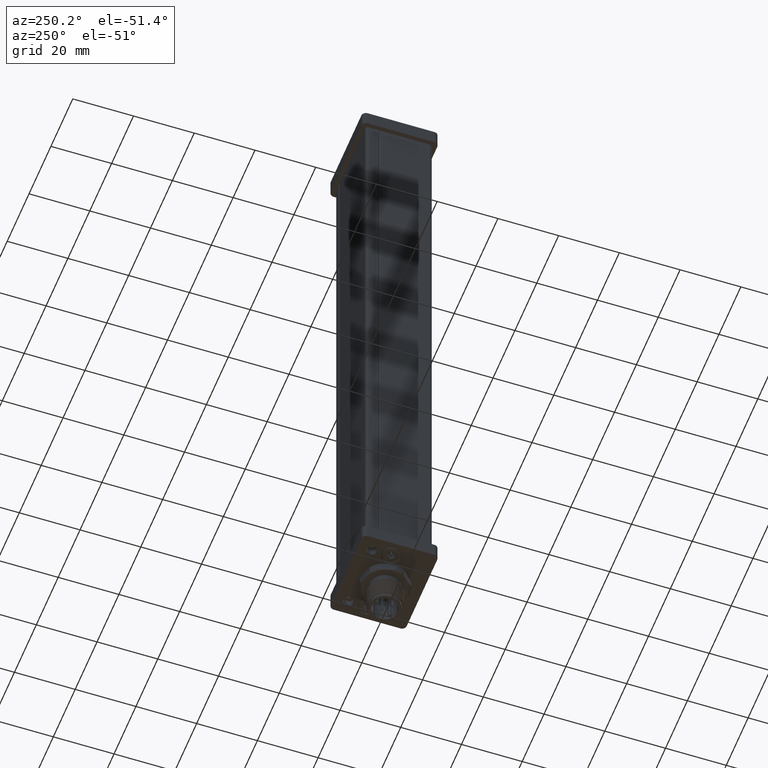
[diagram: clean part render]
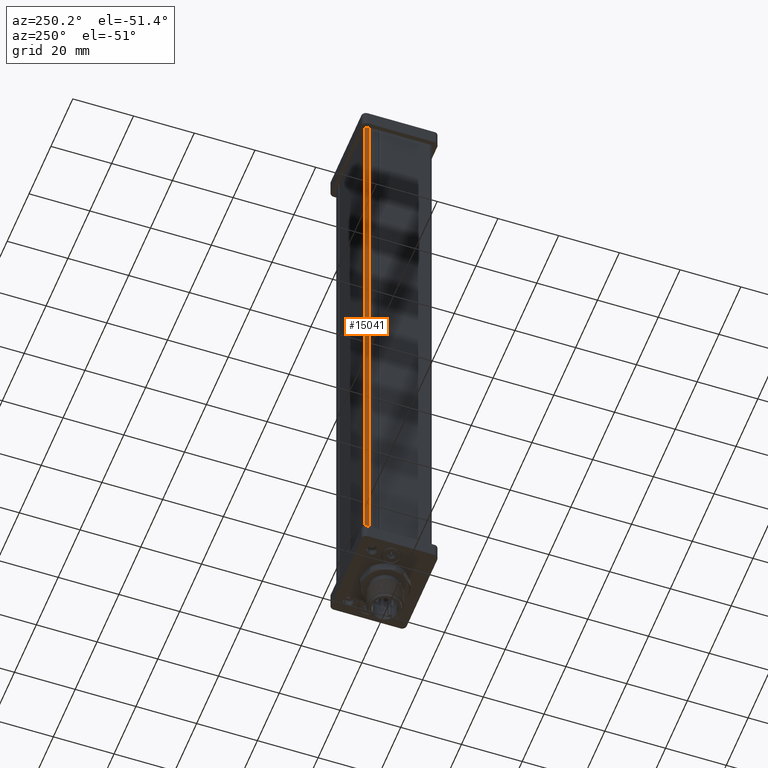
[diagram: same view with one face highlighted and labeled with its STEP entity id]
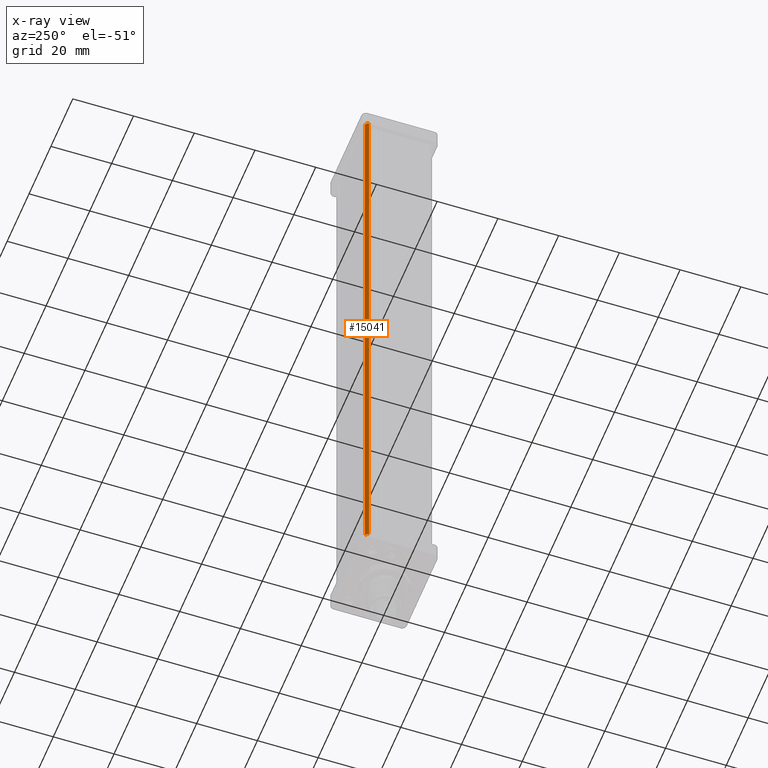
[diagram: x-ray of the same camera — body ghosted, the highlighted face saturated]
A machine part, auxiliary view. The second image highlights one B-rep face of the part: STEP entity #15041.
The next image is the same camera in x-ray: the body ghosted, the highlighted face saturated — about 0% of this face is hidden behind the body in this view.
In plain terms, the highlighted cylindrical surface (edge-blend (fillet) strip) has radius 1 mm, axis along (-0, 0, 1).
Its self-contained STEP definition (entity closure, byte-faithful):
#1057 = DIRECTION ( 'NONE',  ( 1.000000000000000000, 0.000000000000000000, 0.000000000000000000 ) ) ;
#2272 = LINE ( 'NONE', #14313, #7352 ) ;
#2695 = DIRECTION ( 'NONE',  ( 0.000000000000000000, 1.000000000000000000, 0.000000000000000000 ) ) ;
#4120 = CARTESIAN_POINT ( 'NONE',  ( -14.00000000000000355, 102.0000000000000142, -9.999999999999982236 ) ) ;
#4237 = EDGE_CURVE ( 'NONE', #15245, #16925, #16599, .T. ) ;
#4418 = CARTESIAN_POINT ( 'NONE',  ( -14.00000000000000355, -90.00000000000000000, -10.00000000000000178 ) ) ;
#5932 = ORIENTED_EDGE ( 'NONE', *, *, #19873, .F. ) ;
#6181 = DIRECTION ( 'NONE',  ( 0.000000000000000000, 1.000000000000000000, 0.000000000000000000 ) ) ;
#6715 = ORIENTED_EDGE ( 'NONE', *, *, #14041, .F. ) ;
#6937 = VECTOR ( 'NONE', #9764, 1000.000000000000000 ) ;
#7352 = VECTOR ( 'NONE', #20007, 1000.000000000000000 ) ;
#7600 = FACE_OUTER_BOUND ( 'NONE', #22135, .T. ) ;
#7709 = CARTESIAN_POINT ( 'NONE',  ( -13.00000000000000355, -90.00000000000000000, -10.00000000000000178 ) ) ;
#7742 = DIRECTION ( 'NONE',  ( 0.000000000000000000, 1.000000000000000000, 0.000000000000000000 ) ) ;
#9764 = DIRECTION ( 'NONE',  ( 0.000000000000000000, 1.000000000000000000, 0.000000000000000000 ) ) ;
#11149 = CARTESIAN_POINT ( 'NONE',  ( -13.00000000000000355, -102.0000000000000000, -10.00000000000000178 ) ) ;
#11185 = CARTESIAN_POINT ( 'NONE',  ( -13.00000000000000355, 102.0000000000000142, -9.999999999999982236 ) ) ;
#11574 = AXIS2_PLACEMENT_3D ( 'NONE', #11185, #6181, #1057 ) ;
#12340 = ORIENTED_EDGE ( 'NONE', *, *, #13379, .T. ) ;
#13379 = EDGE_CURVE ( 'NONE', #16925, #15293, #20004, .T. ) ;
#14041 = EDGE_CURVE ( 'NONE', #21937, #15293, #15537, .T. ) ;
#14313 = CARTESIAN_POINT ( 'NONE',  ( -13.00000000000000355, -90.00000000000000000, -11.00000000000000355 ) ) ;
#14710 = CARTESIAN_POINT ( 'NONE',  ( -13.00000000000000355, -102.0000000000000000, -11.00000000000000355 ) ) ;
#15017 = CARTESIAN_POINT ( 'NONE',  ( -13.00000000000000355, 102.0000000000000142, -10.99999999999998401 ) ) ;
#15041 = ADVANCED_FACE ( 'NONE', ( #7600 ), #21471, .T. ) ;
#15245 = VERTEX_POINT ( 'NONE', #14710 ) ;
#15293 = VERTEX_POINT ( 'NONE', #4120 ) ;
#15537 = CIRCLE ( 'NONE', #11574, 0.9999999999999991118 ) ;
#16488 = AXIS2_PLACEMENT_3D ( 'NONE', #7709, #2695, #16575 ) ;
#16575 = DIRECTION ( 'NONE',  ( 1.000000000000000000, 0.000000000000000000, 0.000000000000000000 ) ) ;
#16599 = CIRCLE ( 'NONE', #22400, 0.9999999999999991118 ) ;
#16720 = DIRECTION ( 'NONE',  ( 1.000000000000000000, 0.000000000000000000, 0.000000000000000000 ) ) ;
#16925 = VERTEX_POINT ( 'NONE', #21917 ) ;
#19873 = EDGE_CURVE ( 'NONE', #15245, #21937, #2272, .T. ) ;
#20004 = LINE ( 'NONE', #4418, #6937 ) ;
#20007 = DIRECTION ( 'NONE',  ( 0.000000000000000000, 1.000000000000000000, 0.000000000000000000 ) ) ;
#21471 = CYLINDRICAL_SURFACE ( 'NONE', #16488, 0.9999999999999991118 ) ;
#21633 = ORIENTED_EDGE ( 'NONE', *, *, #4237, .T. ) ;
#21917 = CARTESIAN_POINT ( 'NONE',  ( -14.00000000000000355, -102.0000000000000000, -10.00000000000000178 ) ) ;
#21937 = VERTEX_POINT ( 'NONE', #15017 ) ;
#22135 = EDGE_LOOP ( 'NONE', ( #12340, #6715, #5932, #21633 ) ) ;
#22400 = AXIS2_PLACEMENT_3D ( 'NONE', #11149, #7742, #16720 ) ;